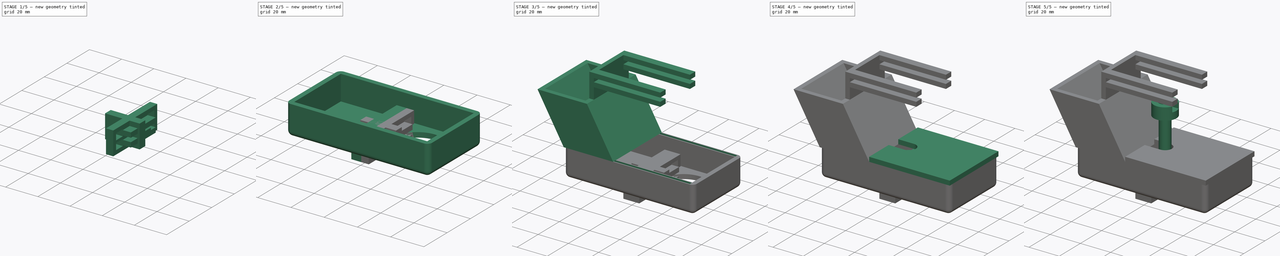
[diagram: build sequence overview — one tinted view per stage of 5, left to right]
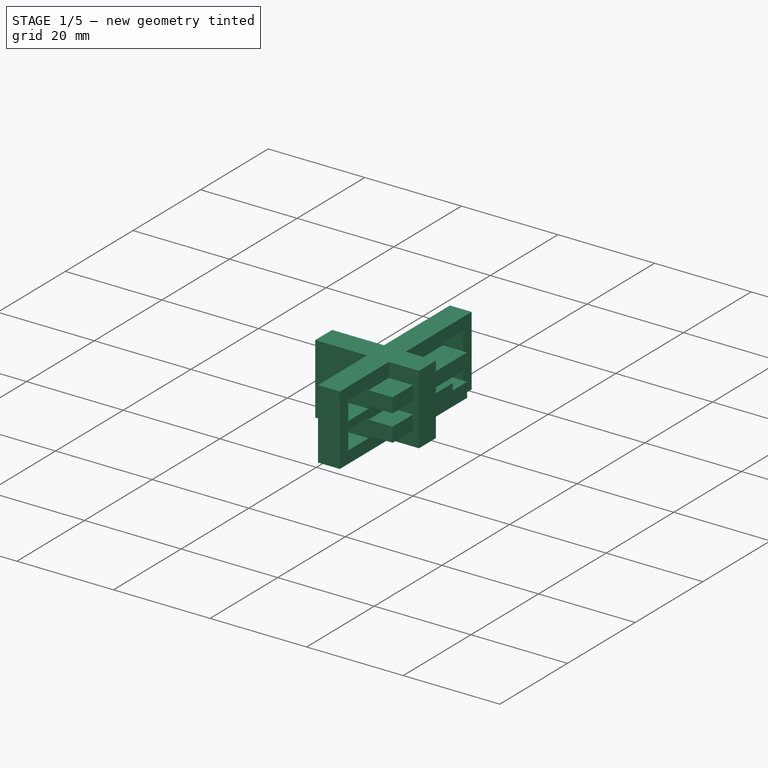
[diagram: stage 1 of 5 — iso view after this stage's code; geometry added in this stage tinted green]
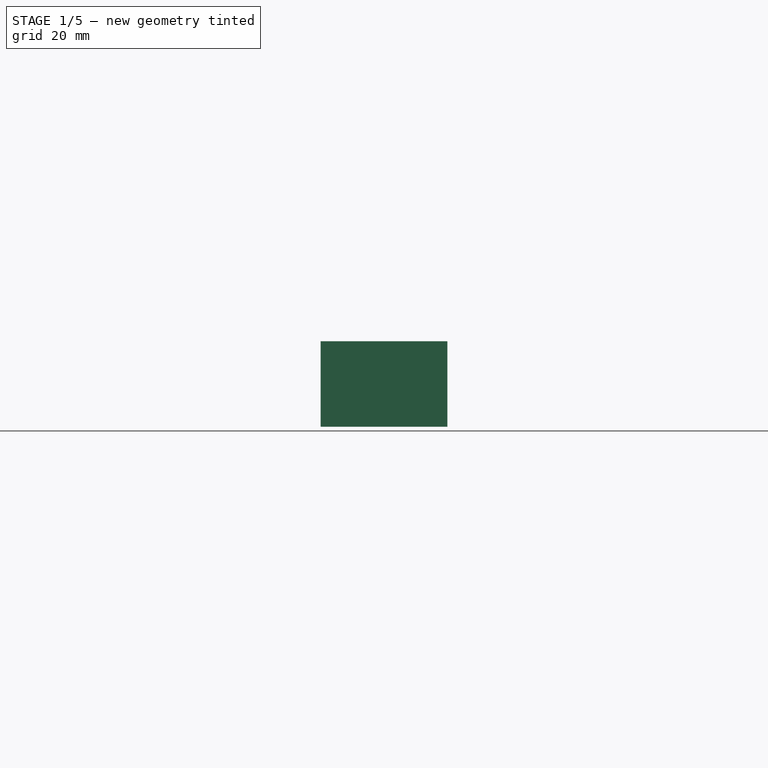
[diagram: stage 1 of 5 — front view after this stage's code; geometry added in this stage tinted green]
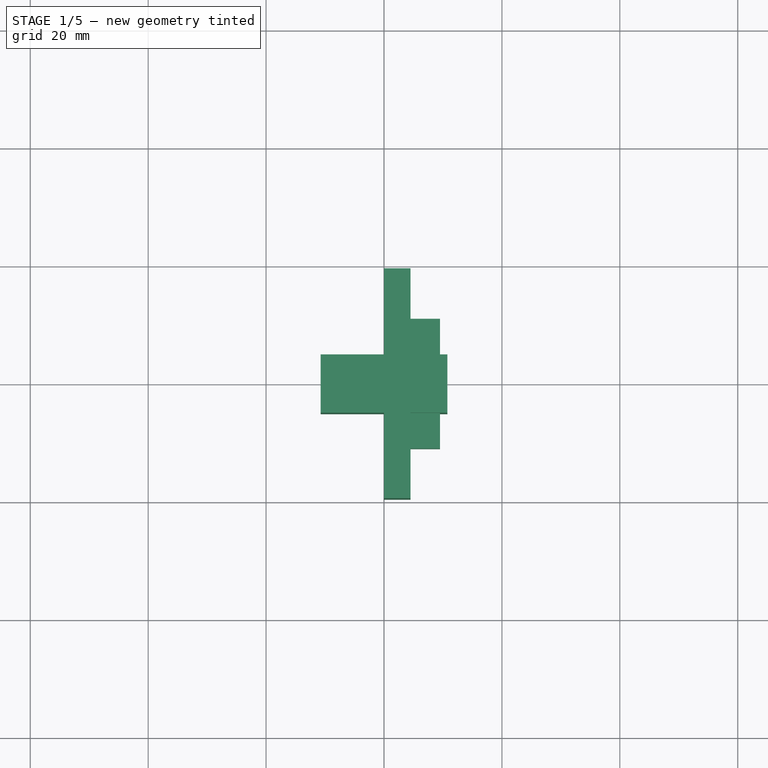
[diagram: stage 1 of 5 — top view after this stage's code; geometry added in this stage tinted green]
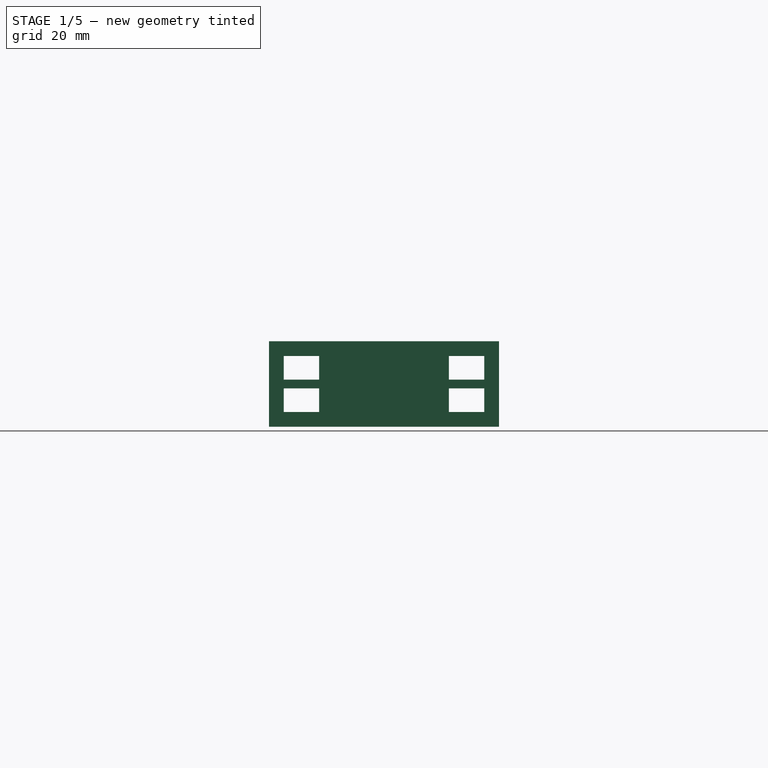
[diagram: stage 1 of 5 — right view after this stage's code; geometry added in this stage tinted green]
FCSTD DOCUMENT  (FreeCAD 1.2R20251230 (Git shallow))
Label: karma_v2
License: All rights reserved
LicenseURL: https://en.wikipedia.org/wiki/All_rights_reserved
objects: Sketcher::SketchObject×19, PartDesign::Pad×16, PartDesign::Body×6, App::Point×6, PartDesign::Pocket×5, PartDesign::MultiTransform×4, PartDesign::Mirrored×3, Part::Part2DObjectPython×2, App::VarSet×1, PartDesign::Thickness×1, PartDesign::PolarPattern×1
note: 128 computed .brp shape members not serialized (recipe doc carries the construction recipe); baked Part::Feature solids carry a one-line shape summary decoded from their .brp

FEATURE [PartDesign::Body] Body  label="pudelko"
  AllowCompound = false
  Group = -> [Sketch,Pad,Thickness,Sketch001,Pocket,Sketch002,Pocket001,Sketch006,Pad004,Sketch007,Pocket002,MultiTransform001,Mirrored,Sketch013,Pad008,Sketch014,Pad009,MultiTransform003,Mirrored002]
  Origin = -> Origin
  Tip = -> MultiTransform003
FEATURE [App::Point] Origin003  label="Origin"
  Role = Origin
FEATURE [App::Point] Origin004  label="Origin"
  Role = Origin
FEATURE [App::Point] Origin005  label="Origin"
  Role = Origin
FEATURE [App::Point] Origin007
  Role = Origin
FEATURE [Sketcher::SketchObject] Sketch015
  ArcFitTolerance = 1e-06
  AttachmentSupport = -> [Origin006]
  ExternalTypes = [0]
  FullyConstrained = true
  MakeInternals = false
  MapMode = 5
  Placement = pos=(0,0,0) rot=(0.57735,0.57735,0.57735;2.0944rad)
  expr: Constraints[41] = 2 * VarSet.WallT + 2.5 mm + 2 * VarSet.WallT
  expr: Constraints[42] = VarSet.WallT - VarSet.JunctionTolerance / 2
  expr: Constraints[43] = VarSet.WallT + VarSet.JunctionTolerance
  expr: Constraints[50] = VarSet.WallT - VarSet.JunctionTolerance / 2
  expr: Constraints[63] = VarSet.EngineW + 2 * VarSet.WallT
  expr: Constraints[64] = 5 mm + VarSet.JunctionTolerance
  sketch-geometry (24):
    g0: LineSegment StartX=-19.5 StartY=7.25 StartZ=0 EndX=-19.5 EndY=-7.25 EndZ=0
    g1: LineSegment StartX=-19.5 StartY=-7.25 StartZ=0 EndX=19.5 EndY=-7.25 EndZ=0
    g2: LineSegment StartX=19.5 StartY=-7.25 StartZ=0 EndX=19.5 EndY=7.25 EndZ=0
    g3: LineSegment StartX=19.5 StartY=7.25 StartZ=0 EndX=-19.5 EndY=7.25 EndZ=0
    g4: LineSegment StartX=-17 StartY=-0.75 StartZ=0 EndX=-17 EndY=-4.75 EndZ=0
    g5: LineSegment StartX=-17 StartY=-4.75 StartZ=0 EndX=-11 EndY=-4.75 EndZ=0
    g6: LineSegment StartX=-11 StartY=-4.75 StartZ=0 EndX=-11 EndY=-0.75 EndZ=0
    g7: LineSegment StartX=-11 StartY=-0.75 StartZ=0 EndX=-17 EndY=-0.75 EndZ=0
    g8: LineSegment StartX=-17 StartY=0.75 StartZ=0 EndX=-11 EndY=0.75 EndZ=0
    g9: LineSegment StartX=-11 StartY=0.75 StartZ=0 EndX=-11 EndY=4.75 EndZ=0
    g10: LineSegment StartX=-11 StartY=4.75 StartZ=0 EndX=-17 EndY=4.75 EndZ=0
    g11: LineSegment StartX=-17 StartY=4.75 StartZ=0 EndX=-17 EndY=0.75 EndZ=0
    g12: LineSegment StartX=11 StartY=4.75 StartZ=0 EndX=11 EndY=0.75 EndZ=0
    g13: LineSegment StartX=11 StartY=0.75 StartZ=0 EndX=17 EndY=0.75 EndZ=0
    g14: LineSegment StartX=17 StartY=0.75 StartZ=0 EndX=17 EndY=4.75 EndZ=0
    g15: LineSegment StartX=17 StartY=4.75 StartZ=0 EndX=11 EndY=4.75 EndZ=0
    g16: LineSegment StartX=11 StartY=-0.75 StartZ=0 EndX=11 EndY=-4.75 EndZ=0
    g17: LineSegment StartX=11 StartY=-4.75 StartZ=0 EndX=17 EndY=-4.75 EndZ=0
    g18: LineSegment StartX=17 StartY=-4.75 StartZ=0 EndX=17 EndY=-0.75 EndZ=0
    g19: LineSegment StartX=17 StartY=-0.75 StartZ=0 EndX=11 EndY=-0.75 EndZ=0
    g20: LineSegment [constr] StartX=-19.5 StartY=0.75 StartZ=0 EndX=-19.5 EndY=-0.75 EndZ=0
    g21: LineSegment [constr] StartX=-19.5 StartY=-0.75 StartZ=0 EndX=17 EndY=-0.75 EndZ=0
    g22: LineSegment [constr] StartX=17 StartY=-0.75 StartZ=0 EndX=17 EndY=0.75 EndZ=0
    g23: LineSegment [constr] StartX=17 StartY=0.75 StartZ=0 EndX=-19.5 EndY=0.75 EndZ=0
  constraints (67):
    c: Coincident(g0,g1)
    c: Coincident(g1,g2)
    c: Coincident(g2,g3)
    c: Coincident(g3,g0)
    c: Vertical(g0)
    c: Vertical(g2)
    c: Horizontal(g1)
    c: Horizontal(g3)
    c: Symmetric(g0,g2,g-1)
    c: Coincident(g4,g5)
    c: Coincident(g5,g6)
    c: Coincident(g6,g7)
    c: Coincident(g7,g4)
    c: Vertical(g4)
    c: Vertical(g6)
    c: Horizontal(g5)
    c: Horizontal(g7)
    c: Coincident(g8,g9)
    c: Coincident(g9,g10)
    c: Coincident(g10,g11)
    c: Coincident(g11,g8)
    c: Horizontal(g8)
    c: Horizontal(g10)
    c: Vertical(g9)
    c: Vertical(g11)
    c: Coincident(g12,g13)
    c: Coincident(g13,g14)
    c: Coincident(g14,g15)
    c: Coincident(g15,g12)
    c: Vertical(g12)
    c: Vertical(g14)
    c: Horizontal(g13)
    c: Horizontal(g15)
    c: Coincident(g16,g17)
    c: Coincident(g17,g18)
    c: Coincident(g18,g19)
    c: Coincident(g19,g16)
    c: Vertical(g16)
    c: Vertical(g18)
    c: Horizontal(g17)
    c: Horizontal(g19)
    c: DistanceY(g0,g0) = 14.5
    c: Distance(g1,g5) = 2.5
    c: DistanceY(g6,g6) = 4
    c: Equal(g5,g17)
    c: Equal(g19,g13)
    c: Equal(g8,g13)
    c: Equal(g9,g6)
    c: Equal(g6,g16)
    c: Equal(g16,g12)
    c: Distance(g0,g4) = 2.5
    c: Coincident(g20,g21)
    c: Coincident(g21,g22)
    c: Coincident(g22,g23)
    c: Coincident(g23,g20)
    c: Vertical(g20)
    c: Vertical(g22)
    c: Horizontal(g21)
    c: Horizontal(g23)
    c: PointOnObject(g20,g0)
    c: PointOnObject(g18,g21)
    c: Symmetric(g6,g8,g-1)
    c: Symmetric(g12,g16,g-1)
    c: DistanceX(g3,g3) = 39
    c: DistanceX(g5,g5) = 6
    c: Symmetric(g12,g8,g-2)
    c: Coincident(g22,g13)
FEATURE [PartDesign::Pad] Pad010
  Direction = (1,0,0)
  Length = 6
  Length2 = 10
  Profile = -> Sketch015
  ReferenceAxis = -> Sketch015 [N_Axis]
  Refine = true
  Reversed = true
  SideType = 0
  Suppressed = false
  Type = 0
  Type2 = 0
FEATURE [PartDesign::Body] Body003  label="EngineLock"
  AllowCompound = true
  Group = -> [Sketch015,Pad010,Sketch016,Pad011]
  Origin = -> Origin006
  Placement = pos=(16.3333,0,56.75) rot=(0,0,1;0rad)
  Tip = -> Pad011
  expr: .Placement.Base.x = 1 / 6 * VarSet.BaseW + VarSet.WallT
  expr: .Placement.Base.z = VarSet.BaseD + VarSet.SupplyH + 13 mm - 2.5 mm / 2
FEATURE [App::Point] Origin009  label="Origin010"
  Role = Origin
FEATURE [Part::Part2DObjectPython] Clone2D  label="Sketch015 (2D)"  # Draft 2D object (typed FeaturePython)
  AttachmentSupport = -> [Origin008]
  ForceCompound = false
  Fuse = false
  MapMode = 5
  Objects = -> [Sketch015]
  Placement = pos=(0,0,0) rot=(0.57735,0.57735,0.57735;2.0944rad)
  Scale = (1,1,1)
FEATURE [PartDesign::Pad] Pad012
  Direction = (1,0,0)
  Length = 4.5
  Length2 = 10
  Profile = -> Clone2D
  ReferenceAxis = -> Clone2D [N_Axis]
  Refine = true
  SideType = 0
  Suppressed = false
  Type = 0
  Type2 = 0
FEATURE [Part::Part2DObjectPython] Clone2D001  label="Sketch016 (2D)"  # Draft 2D object (typed FeaturePython)
  AttachmentSupport = -> [Pad012]
  ForceCompound = false
  Fuse = false
  MapMode = 5
  Objects = -> [Sketch016]
  Placement = pos=(4.5,0,0) rot=(0.57735,0.57735,0.57735;2.0944rad)
  Scale = (1,1,1)
FEATURE [PartDesign::Pad] Pad013
  BaseFeature = -> Pad012
  Direction = (1,0,0)
  Length = 5
  Length2 = 10
  Profile = -> Clone2D001
  ReferenceAxis = -> Clone2D001 [N_Axis]
  Refine = true
  SideType = 0
  Suppressed = false
  Type = 0
  Type2 = 0
FEATURE [PartDesign::Body] Body004  label="EngineLock2"
  AllowCompound = true
  Group = -> [Clone2D,Pad012,Clone2D001,Pad013]
  Origin = -> Origin008
  Placement = pos=(-27.6538,0,56.75) rot=(0,0,1;0rad)
  Tip = -> Pad013
  expr: .Placement.Base.x = -1 / 6 * VarSet.BaseW + VarSet.WallT - VarSet.SupplyH / sqrt(3)
  expr: .Placement.Base.z = VarSet.BaseD + VarSet.SupplyH + 13 mm - 2.5 mm / 2
FEATURE [App::Point] Origin011  label="Origin013"
  Role = Origin
FEATURE [Sketcher::SketchObject] Sketch017
  ArcFitTolerance = 1e-06
  AttachmentSupport = -> [Origin010]
  ExternalTypes = [0]
  FullyConstrained = true
  MakeInternals = false
  MapMode = 5
  Placement = pos=(0,0,0) rot=(1,0,0;1.5708rad)
  expr: Constraints[10] = <<VarSet>>.SupplyH / sqrt(3) + 1 / 3 * <<VarSet>>.BaseW - 4.5 mm - 6 mm - 2 * 5 mm - 2 * VarSet.JunctionTolerance
  expr: Constraints[8] = 2 * VarSet.WallT + 2.5 mm + 2 * VarSet.WallT
  sketch-geometry (4):
    g0: LineSegment StartX=-10.7436 StartY=7.25 StartZ=0 EndX=-10.7436 EndY=-7.25 EndZ=0
    g1: LineSegment StartX=-10.7436 StartY=-7.25 StartZ=0 EndX=10.7436 EndY=-7.25 EndZ=0
    g2: LineSegment StartX=10.7436 StartY=-7.25 StartZ=0 EndX=10.7436 EndY=7.25 EndZ=0
    g3: LineSegment StartX=10.7436 StartY=7.25 StartZ=0 EndX=-10.7436 EndY=7.25 EndZ=0
  constraints (11):
    c: Coincident(g0,g1)
    c: Coincident(g1,g2)
    c: Coincident(g2,g3)
    c: Coincident(g3,g0)
    c: Vertical(g0)
    c: Vertical(g2)
    c: Horizontal(g1)
    c: Horizontal(g3)
    c: DistanceY(g2,g2) = 14.5
    c: Symmetric(g1,g0,g-1)
    c: DistanceX(g3,g3) = 21.4872
FEATURE [PartDesign::Pad] Pad014
  Direction = (0,-1,2e-16)
  Length = 5
  Length2 = 10
  Profile = -> Sketch017
  ReferenceAxis = -> Sketch017 [N_Axis]
  Refine = true
  SideType = 0
  Suppressed = false
  Type = 0
  Type2 = 0
FEATURE [Sketcher::SketchObject] Sketch018
  ArcFitTolerance = 1e-06
  AttachmentSupport = -> [Pad014]
  ExternalGeometry = -> [Pad014]
  ExternalTypes = [0,0]
  FullyConstrained = true
  MakeInternals = false
  MapMode = 5
  Placement = pos=(0,0,0) rot=(0,0.707107,0.707107;3.14159rad)
  sketch-geometry (4):
    g0: LineSegment StartX=-10.7436 StartY=-1.15 StartZ=0 EndX=10.7436 EndY=-1.15 EndZ=0
    g1: LineSegment StartX=10.7436 StartY=-1.15 StartZ=0 EndX=10.7436 EndY=1.15 EndZ=0
    g2: LineSegment StartX=10.7436 StartY=1.15 StartZ=0 EndX=-10.7436 EndY=1.15 EndZ=0
    g3: LineSegment StartX=-10.7436 StartY=1.15 StartZ=0 EndX=-10.7436 EndY=-1.15 EndZ=0
  constraints (11):
    c: Coincident(g0,g1)
    c: Coincident(g1,g2)
    c: Coincident(g2,g3)
    c: Coincident(g3,g0)
    c: Horizontal(g0)
    c: Horizontal(g2)
    c: Vertical(g1)
    c: Vertical(g3)
    c: Symmetric(g0,g1,g-1)
    c: PointOnObject(g0,g-3)
    c: DistanceY(g3,g3) = 2.3
FEATURE [PartDesign::Pad] Pad015
  BaseFeature = -> Pad014
  Direction = (0,1,-2e-16)
  Length = 5
  Length2 = 10
  Profile = -> Sketch018
  ReferenceAxis = -> Sketch018 [N_Axis]
  Refine = true
  SideType = 0
  Suppressed = false
  Type = 0
  Type2 = 0
FEATURE [PartDesign::Body] Body005  label="VLock"
  AllowCompound = true
  Group = -> [Sketch017,Pad014,Sketch018,Pad015]
  Origin = -> Origin010
  Placement = pos=(-6.41025,11.5,56.75) rot=(0,0,1;0rad)
  Tip = -> Pad015
  expr: .Placement.Base.x = (1 / 6 * VarSet.BaseW + VarSet.WallT + -1 / 6 * VarSet.BaseW + VarSet.WallT - VarSet.SupplyH / sqrt(3) - 6 mm + 4.5 mm) / 2
  expr: .Placement.Base.y = <<VarSet>>.EngineW / 2 - 5 mm
  expr: .Placement.Base.z = VarSet.BaseD + VarSet.SupplyH + 13 mm - 2.5 mm / 2
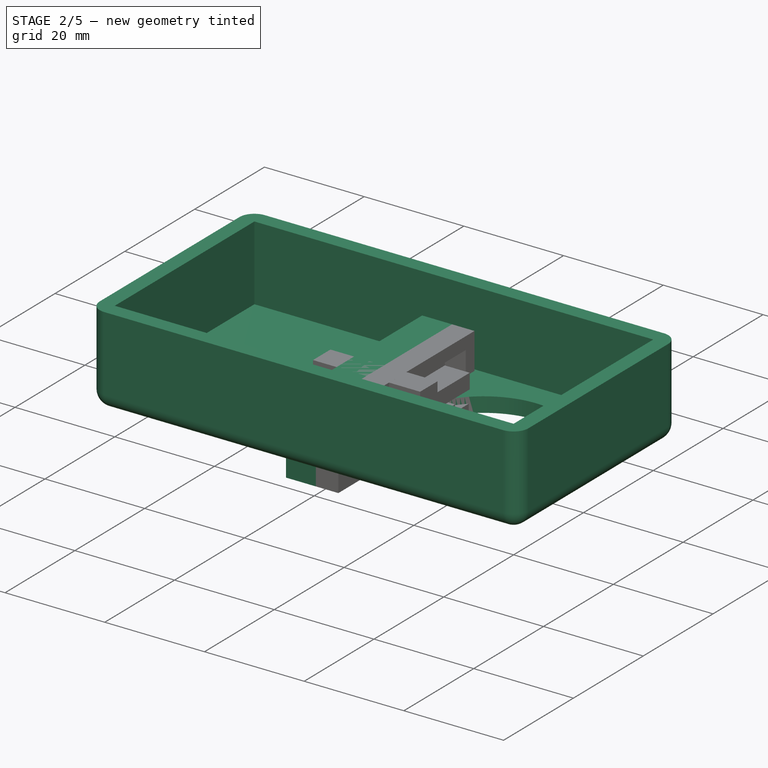
[diagram: stage 2 of 5 — iso view after this stage's code; geometry added in this stage tinted green]
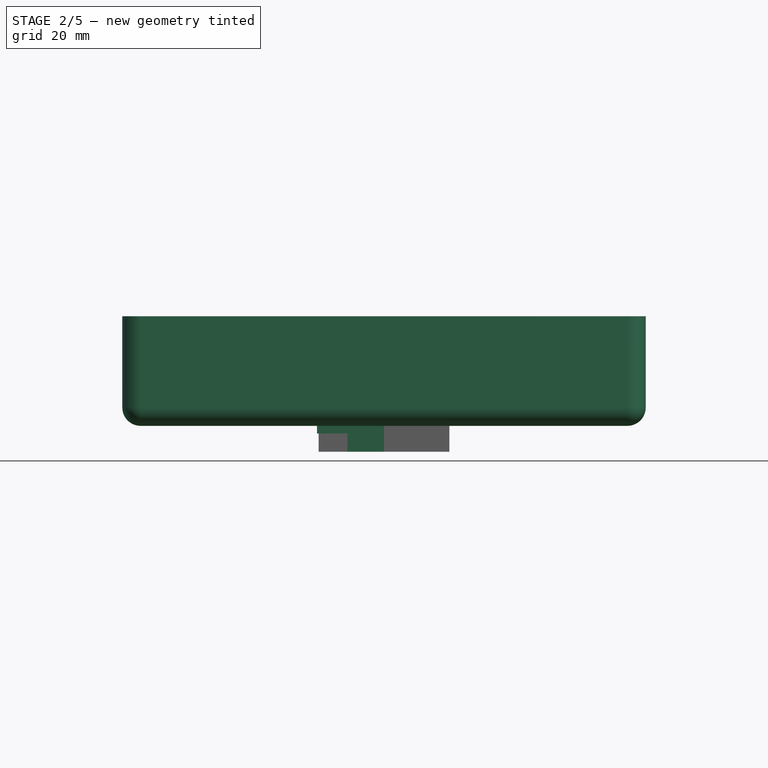
[diagram: stage 2 of 5 — front view after this stage's code; geometry added in this stage tinted green]
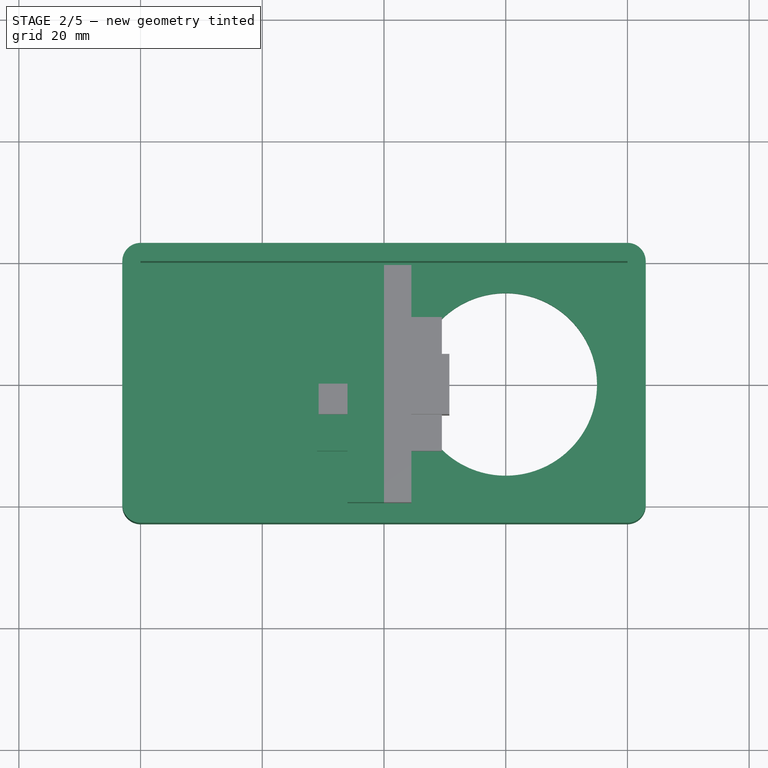
[diagram: stage 2 of 5 — top view after this stage's code; geometry added in this stage tinted green]
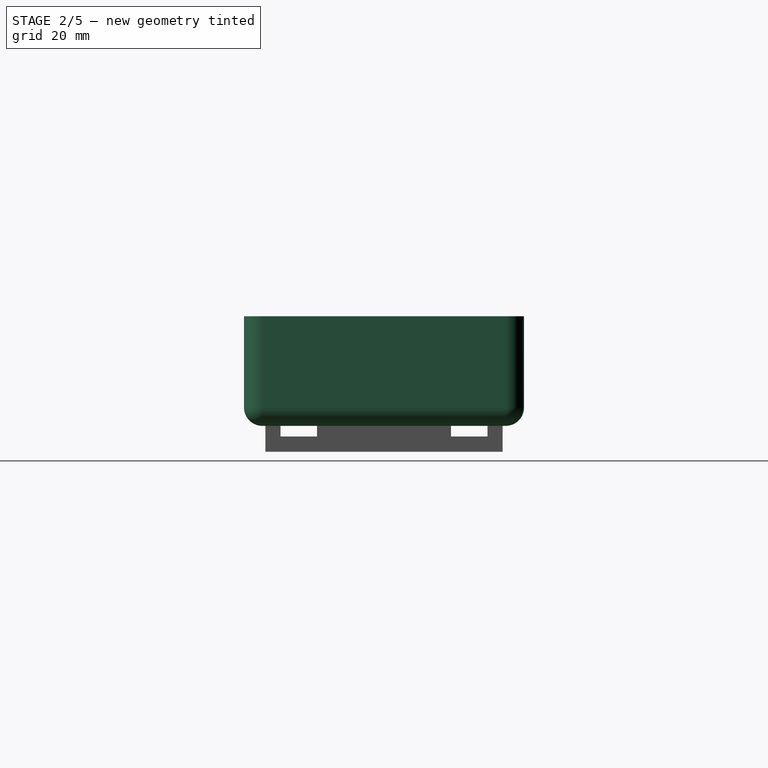
[diagram: stage 2 of 5 — right view after this stage's code; geometry added in this stage tinted green]
FEATURE [Sketcher::SketchObject] Sketch
  ArcFitTolerance = 1e-06
  AttachmentSupport = -> [XY_Plane]
  ExternalTypes = [0]
  FullyConstrained = true
  MakeInternals = false
  MapMode = 5
  expr: Constraints[10] = <<VarSet>>.BaseW
  expr: Constraints[11] = <<VarSet>>.BaseH
  sketch-geometry (5):
    g0: LineSegment StartX=-40 StartY=-20 StartZ=0 EndX=40 EndY=-20 EndZ=0
    g1: LineSegment StartX=40 StartY=-20 StartZ=0 EndX=40 EndY=20 EndZ=0
    g2: LineSegment StartX=40 StartY=20 StartZ=0 EndX=-40 EndY=20 EndZ=0
    g3: LineSegment StartX=-40 StartY=20 StartZ=0 EndX=-40 EndY=-20 EndZ=0
    g4: GeomPoint [constr] X=0 Y=0 Z=0
  constraints (12):
    c: Coincident(g0,g1)
    c: Coincident(g1,g2)
    c: Coincident(g2,g3)
    c: Coincident(g3,g0)
    c: Horizontal(g0)
    c: Horizontal(g2)
    c: Vertical(g1)
    c: Vertical(g3)
    c: Symmetric(g2,g0,g4)
    c: Coincident(g4,g-1)
    c: DistanceX(g2,g2) = 80
    c: DistanceY(g3,g3) = 40
FEATURE [App::VarSet] VarSet
  BaseD = 15
  BaseH = 40
  BaseW = 80
  EngineJnuctionEngr = 3.5
  EngineJunctionBaseD = 15
  EngineJunctionBaseH = 8
  EngineJunctionWingD = 6
  EngineMountCircD = 8
  EngineW = 33
  JunctionD = 0.7
  JunctionH = 2
  JunctionTolerance = 1
  OutputHoleD = 30
  RotorH = 22
  RotorMountD = 8
  RotorWingD = 3
  SupplyH = 30
  Tolerance = 1
  WallT = 3
  expr: RotorH = SupplyH - EngineJunctionBaseH
FEATURE [PartDesign::Pad] Pad
  Direction = (0,0,1)
  Length = 15
  Length2 = 10
  Profile = -> Sketch
  ReferenceAxis = -> Sketch [N_Axis]
  Refine = true
  SideType = 0
  Suppressed = false
  Type = 0
  Type2 = 0
  expr: Length = <<VarSet>>.BaseD
FEATURE [PartDesign::Thickness] Thickness
  Base = -> Pad [Face6]
  BaseFeature = -> Pad
  Intersection = false
  Join = 0
  Mode = 0
  Refine = true
  SupportTransform = false
  Suppressed = false
  Value = 3
  expr: Value = <<VarSet>>.WallT
FEATURE [Sketcher::SketchObject] Sketch001
  ArcFitTolerance = 1e-06
  AttachmentSupport = -> [Thickness]
  ExternalGeometry = -> [Thickness]
  ExternalTypes = [0]
  FullyConstrained = true
  MakeInternals = false
  MapMode = 5
  expr: Constraints[0] = VarSet.OutputHoleD
  sketch-geometry (2):
    g0: Circle CenterX=20 CenterY=-1e-16 CenterZ=0 NormalX=0 NormalY=0 NormalZ=1 AngleXU=0 Radius=15
    g1: GeomPoint X=40 Y=-2e-16 Z=0
  constraints (3):
    c: Diameter(g0) = 30
    c: Symmetric(g-3,g-3,g1)
    c: Symmetric(g1,g-1,g0)
FEATURE [PartDesign::Pocket] Pocket
  BaseFeature = -> Thickness
  Direction = (0,0,-1)
  Length = 3
  Length2 = 5
  Profile = -> Sketch001
  ReferenceAxis = -> Sketch001 [N_Axis]
  Refine = true
  SideType = 0
  Suppressed = false
  Type = 0
  Type2 = 0
  expr: Length = <<VarSet>>.WallT
FEATURE [Sketcher::SketchObject] Sketch002
  ArcFitTolerance = 1e-06
  AttachmentSupport = -> [Pocket]
  ExternalTypes = [0]
  FullyConstrained = true
  MakeInternals = false
  MapMode = 5
  expr: Constraints[1] = VarSet.RotorMountD
  sketch-geometry (1):
    g0: Circle CenterX=0 CenterY=0 CenterZ=0 NormalX=0 NormalY=0 NormalZ=1 AngleXU=0 Radius=4
  constraints (2):
    c: Coincident(g0,g-1)
    c: Diameter(g0) = 8
FEATURE [PartDesign::Pocket] Pocket001
  BaseFeature = -> Pocket
  Direction = (0,0,-1)
  Length = 1.5
  Length2 = 5
  Profile = -> Sketch002
  ReferenceAxis = -> Sketch002 [N_Axis]
  Refine = true
  SideType = 0
  Suppressed = false
  Type = 0
  Type2 = 0
  expr: Length = <<VarSet>>.WallT / 2
FEATURE [Sketcher::SketchObject] Sketch016
  ArcFitTolerance = 1e-06
  AttachmentSupport = -> [Pad010]
  ExternalGeometry = -> [Pad010]
  ExternalTypes = [0,0,0,0,0]
  FullyConstrained = true
  MakeInternals = false
  MapMode = 5
  Placement = pos=(-6,0,0) rot=(0.57735,-0.57735,-0.57735;2.0944rad)
  expr: Constraints[19] = VarSet.JunctionTolerance / 2
  sketch-geometry (14):
    g0: LineSegment [constr] StartX=-11 StartY=-0.75 StartZ=0 EndX=-11 EndY=-4.75 EndZ=0
    g1: LineSegment [constr] StartX=-11 StartY=-4.75 StartZ=0 EndX=11 EndY=-4.75 EndZ=0
    g2: LineSegment [constr] StartX=11 StartY=-4.75 StartZ=0 EndX=11 EndY=-0.75 EndZ=0
    g3: LineSegment [constr] StartX=11 StartY=-0.75 StartZ=0 EndX=-11 EndY=-0.75 EndZ=0
    g4: LineSegment StartX=-11 StartY=-1.25 StartZ=0 EndX=-11 EndY=-4.25 EndZ=0
    g5: LineSegment StartX=-11 StartY=-4.25 StartZ=0 EndX=11 EndY=-4.25 EndZ=0
    g6: LineSegment StartX=11 StartY=-4.25 StartZ=0 EndX=11 EndY=-1.25 EndZ=0
    g7: LineSegment StartX=11 StartY=-1.25 StartZ=0 EndX=-11 EndY=-1.25 EndZ=0
    g8: GeomPoint [constr] X=2e-16 Y=2.75 Z=0
    g9: GeomPoint [constr] X=2e-16 Y=-2.75 Z=0
    g10: LineSegment StartX=-11 StartY=4.25 StartZ=0 EndX=-11 EndY=1.25 EndZ=0
    g11: LineSegment StartX=-11 StartY=1.25 StartZ=0 EndX=11 EndY=1.25 EndZ=0
    g12: LineSegment StartX=11 StartY=1.25 StartZ=0 EndX=11 EndY=4.25 EndZ=0
    g13: LineSegment StartX=11 StartY=4.25 StartZ=0 EndX=-11 EndY=4.25 EndZ=0
  constraints (34):
    c: Coincident(g0,g1)
    c: Coincident(g1,g2)
    c: Coincident(g2,g3)
    c: Coincident(g3,g0)
    c: Vertical(g0)
    c: Vertical(g2)
    c: Horizontal(g1)
    c: Horizontal(g3)
    c: Coincident(g0,g-26)
    c: Coincident(g1,g-13)
    c: Coincident(g4,g5)
    c: Coincident(g5,g6)
    c: Coincident(g6,g7)
    c: Coincident(g7,g4)
    c: Vertical(g4)
    c: Vertical(g6)
    c: Horizontal(g5)
    c: Horizontal(g7)
    c: PointOnObject(g4,g0)
    c: Distance(g1,g5) = 0.5
    c: Coincident(g10,g11)
    c: Coincident(g11,g12)
    c: Coincident(g12,g13)
    c: Coincident(g13,g10)
    c: Vertical(g10)
    c: Vertical(g12)
    c: Horizontal(g11)
    c: Horizontal(g13)
    c: Symmetric(g12,g10,g8)
    c: Symmetric(g9,g8,g-1)
    c: Symmetric(g4,g6,g9)
    c: Symmetric(g0,g2,g9)
    c: Equal(g11,g7)
    c: Equal(g10,g4)
FEATURE [PartDesign::Pad] Pad011
  BaseFeature = -> Pad010
  Direction = (-1,0,0)
  Length = 5
  Length2 = 10
  Profile = -> Sketch016
  ReferenceAxis = -> Sketch016 [N_Axis]
  Refine = true
  SideType = 0
  Suppressed = false
  Type = 0
  Type2 = 0
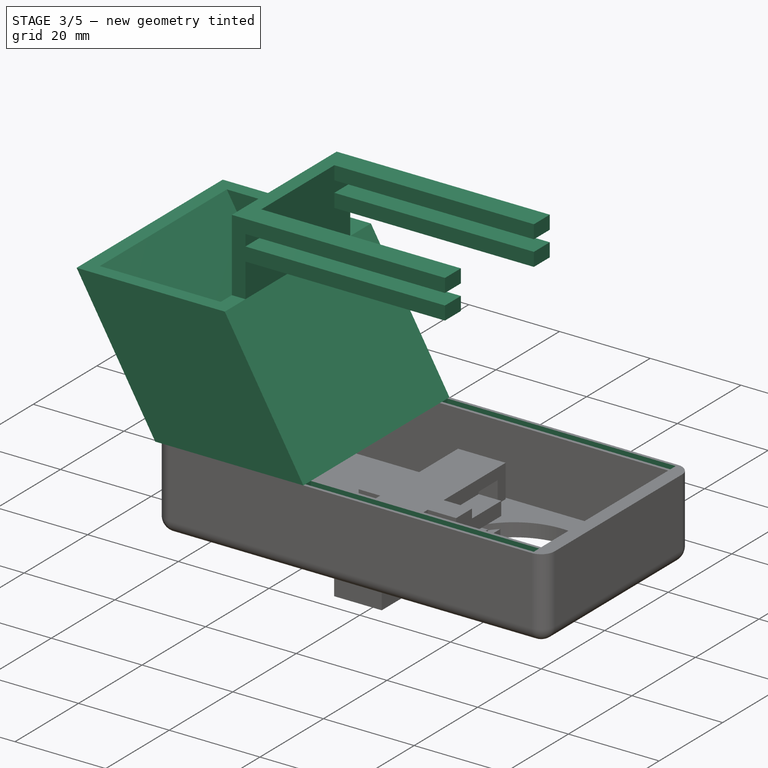
[diagram: stage 3 of 5 — iso view after this stage's code; geometry added in this stage tinted green]
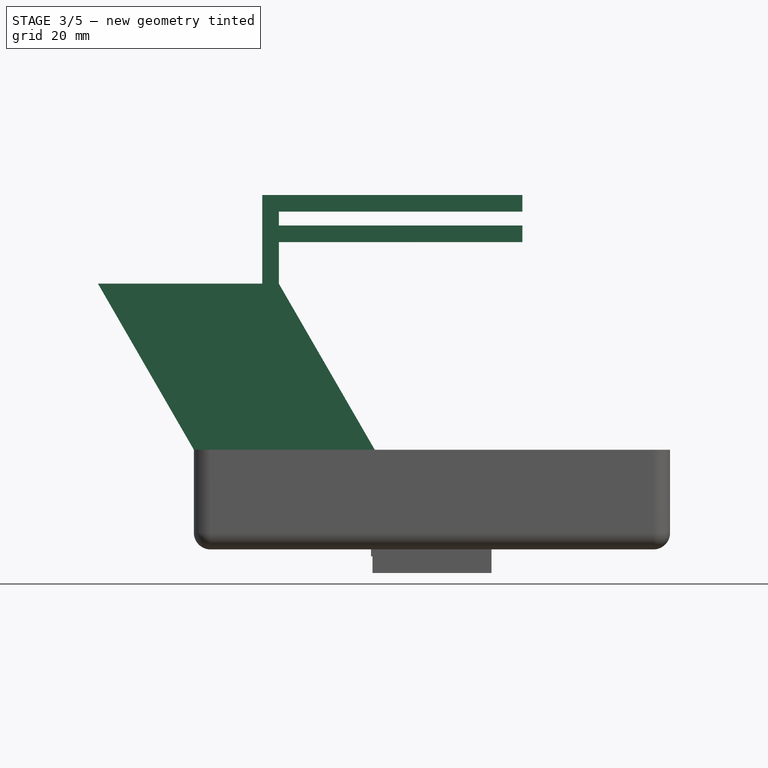
[diagram: stage 3 of 5 — front view after this stage's code; geometry added in this stage tinted green]
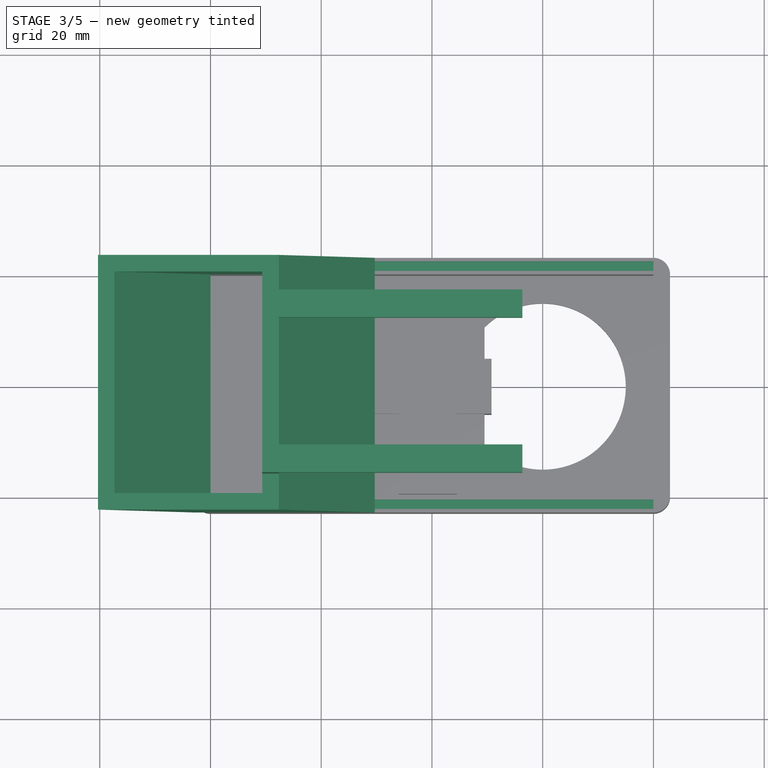
[diagram: stage 3 of 5 — top view after this stage's code; geometry added in this stage tinted green]
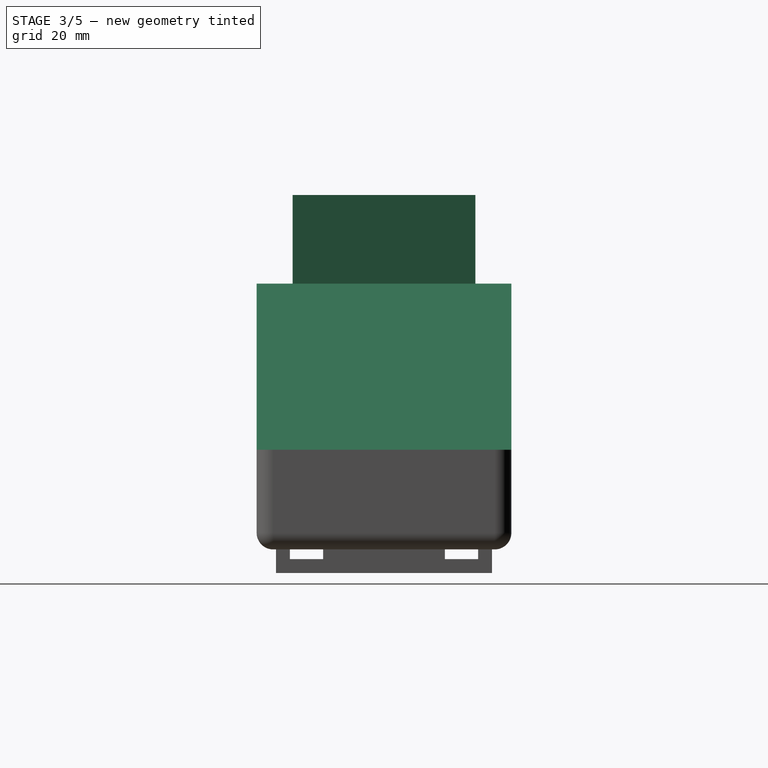
[diagram: stage 3 of 5 — right view after this stage's code; geometry added in this stage tinted green]
FEATURE [Sketcher::SketchObject] Sketch006
  ArcFitTolerance = 1e-06
  AttachmentSupport = -> [Pocket001]
  ExternalGeometry = -> [Pocket001]
  ExternalTypes = [0]
  FullyConstrained = true
  MakeInternals = false
  MapMode = 5
  Placement = pos=(0,0,15) rot=(0,0,1;0rad)
  expr: Constraints[10] = <<VarSet>>.BaseW / 3
  expr: Constraints[22] = <<VarSet>>.WallT
  sketch-geometry (8):
    g0: LineSegment StartX=-40 StartY=20 StartZ=0 EndX=-40 EndY=-20 EndZ=0
    g1: LineSegment StartX=-40 StartY=-20 StartZ=0 EndX=-13.3333 EndY=-20 EndZ=0
    g2: LineSegment StartX=-13.3333 StartY=-20 StartZ=0 EndX=-13.3333 EndY=20 EndZ=0
    g3: LineSegment StartX=-13.3333 StartY=20 StartZ=0 EndX=-40 EndY=20 EndZ=0
    g4: LineSegment StartX=-43 StartY=23 StartZ=0 EndX=-43 EndY=-23 EndZ=0
    g5: LineSegment StartX=-43 StartY=-23 StartZ=0 EndX=-10.3333 EndY=-23 EndZ=0
    g6: LineSegment StartX=-10.3333 StartY=-23 StartZ=0 EndX=-10.3333 EndY=23 EndZ=0
    g7: LineSegment StartX=-10.3333 StartY=23 StartZ=0 EndX=-43 EndY=23 EndZ=0
  constraints (23):
    c: Coincident(g0,g1)
    c: Coincident(g1,g2)
    c: Coincident(g2,g3)
    c: Coincident(g3,g0)
    c: Vertical(g0)
    c: Vertical(g2)
    c: Horizontal(g1)
    c: Horizontal(g3)
    c: Coincident(g0,g-3)
    c: PointOnObject(g1,g-4)
    c: DistanceX(g3,g3) = 26.6667
    c: Coincident(g4,g5)
    c: Coincident(g5,g6)
    c: Coincident(g6,g7)
    c: Coincident(g7,g4)
    c: Vertical(g4)
    c: Vertical(g6)
    c: Horizontal(g5)
    c: Horizontal(g7)
    c: PointOnObject(g4,g-6)
    c: PointOnObject(g4,g-5)
    c: PointOnObject(g5,g-7)
    c: Distance(g2,g6) = 3
FEATURE [PartDesign::Pad] Pad004
  BaseFeature = -> Pocket001
  Direction = (-1,0,1.73205)
  Length = 30
  Length2 = 10
  Profile = -> Sketch006
  ReferenceAxis = -> Sketch006 [N_Axis]
  Refine = true
  SideType = 0
  Suppressed = false
  Type = 0
  Type2 = 0
  UseCustomVector = true
  expr: .Direction.x = -1
  expr: .Direction.z = sqrt(3)
  expr: Length = <<VarSet>>.SupplyH
FEATURE [Sketcher::SketchObject] Sketch007
  ArcFitTolerance = 1e-06
  AttachmentSupport = -> [Pad004]
  ExternalGeometry = -> [Pad004]
  ExternalTypes = [0]
  FullyConstrained = true
  MakeInternals = false
  MapMode = 5
  Placement = pos=(0,0,15) rot=(0,0,1;0rad)
  expr: Constraints[9] = <<VarSet>>.JunctionD + <<VarSet>>.JunctionTolerance
  sketch-geometry (5):
    g0: LineSegment StartX=-10.3333 StartY=-20.65 StartZ=0 EndX=-10.3333 EndY=-22.35 EndZ=0
    g1: LineSegment StartX=-10.3333 StartY=-22.35 StartZ=0 EndX=40 EndY=-22.35 EndZ=0
    g2: LineSegment StartX=40 StartY=-22.35 StartZ=0 EndX=40 EndY=-20.65 EndZ=0
    g3: LineSegment StartX=40 StartY=-20.65 StartZ=0 EndX=-10.3333 EndY=-20.65 EndZ=0
    g4: GeomPoint X=-10.3333 Y=-21.5 Z=0
  constraints (12):
    c: Coincident(g0,g1)
    c: Coincident(g1,g2)
    c: Coincident(g2,g3)
    c: Coincident(g3,g0)
    c: Vertical(g0)
    c: Vertical(g2)
    c: Horizontal(g1)
    c: Horizontal(g3)
    c: PointOnObject(g2,g-3)
    c: DistanceY(g0,g0) = 1.7
    c: Symmetric(g0,g0,g4)
    c: Symmetric(g-4,g-4,g4)
FEATURE [PartDesign::Pocket] Pocket002
  BaseFeature = -> Pad004
  Direction = (0,0,-1)
  Length = 2
  Length2 = 5
  Profile = -> Sketch007
  ReferenceAxis = -> Sketch007 [N_Axis]
  Refine = true
  SideType = 0
  Suppressed = false
  Type = 0
  Type2 = 0
  expr: Length = VarSet.JunctionH
FEATURE [PartDesign::Mirrored] Mirrored
  MirrorPlane = -> XZ_Plane
  Refine = true
  Suppressed = false
  TransformMode = 0
FEATURE [PartDesign::MultiTransform] MultiTransform001
  BaseFeature = -> Pocket002
  Originals = -> [Pocket002]
  Refine = true
  Suppressed = false
  TransformMode = 0
  Transformations = -> [Mirrored]
FEATURE [PartDesign::Body] Body002  label="Klapa"
  AllowCompound = false
  Group = -> [Sketch008,Pad005,Sketch009,Sketch010,Pad006,MultiTransform002,Mirrored001,Pocket005]
  Origin = -> Origin002
  Tip = -> Pocket005
FEATURE [Sketcher::SketchObject] Sketch013
  ArcFitTolerance = 1e-06
  AttachmentSupport = -> [MultiTransform001]
  ExternalGeometry = -> [MultiTransform001]
  ExternalTypes = [0]
  FullyConstrained = true
  MakeInternals = false
  MapMode = 5
  Placement = pos=(0,0,45) rot=(0,0,1;0rad)
  expr: Constraints[8] = <<VarSet>>.EngineW
  sketch-geometry (4):
    g0: LineSegment StartX=-30.6538 StartY=16.5 StartZ=0 EndX=-30.6538 EndY=-16.5 EndZ=0
    g1: LineSegment StartX=-30.6538 StartY=-16.5 StartZ=0 EndX=-27.6538 EndY=-16.5 EndZ=0
    g2: LineSegment StartX=-27.6538 StartY=-16.5 StartZ=0 EndX=-27.6538 EndY=16.5 EndZ=0
    g3: LineSegment StartX=-27.6538 StartY=16.5 StartZ=0 EndX=-30.6538 EndY=16.5 EndZ=0
  constraints (11):
    c: Coincident(g0,g1)
    c: Coincident(g1,g2)
    c: Coincident(g2,g3)
    c: Coincident(g3,g0)
    c: Vertical(g2)
    c: Horizontal(g1)
    c: Horizontal(g3)
    c: Symmetric(g0,g0,g-1)
    c: DistanceY(g2,g2) = 33
    c: PointOnObject(g-3,g0)
    c: PointOnObject(g-4,g2)
FEATURE [PartDesign::Pad] Pad008
  BaseFeature = -> MultiTransform001
  Direction = (0,0,1)
  Length = 16
  Length2 = 10
  Profile = -> Sketch013
  ReferenceAxis = -> Sketch013 [N_Axis]
  Refine = true
  SideType = 0
  Suppressed = false
  Type = 0
  Type2 = 0
  expr: Length = 13 mm + <<VarSet>>.WallT
FEATURE [Sketcher::SketchObject] Sketch014
  ArcFitTolerance = 1e-06
  AttachmentSupport = -> [Pad008]
  ExternalGeometry = -> [Pad008]
  ExternalTypes = [0]
  FullyConstrained = true
  MakeInternals = false
  MapMode = 5
  Placement = pos=(-27.6538,0,0) rot=(0.57735,0.57735,0.57735;2.0944rad)
  expr: Constraints[9] = <<VarSet>>.WallT
  sketch-geometry (8):
    g0: LineSegment StartX=-16.5 StartY=61 StartZ=0 EndX=-16.5 EndY=58 EndZ=0
    g1: LineSegment StartX=-16.5 StartY=58 StartZ=0 EndX=-11.5 EndY=58 EndZ=0
    g2: LineSegment StartX=-11.5 StartY=58 StartZ=0 EndX=-11.5 EndY=61 EndZ=0
    g3: LineSegment StartX=-11.5 StartY=61 StartZ=0 EndX=-16.5 EndY=61 EndZ=0
    g4: LineSegment StartX=-11.5 StartY=55.5 StartZ=0 EndX=-16.5 EndY=55.5 EndZ=0
    g5: LineSegment StartX=-16.5 StartY=55.5 StartZ=0 EndX=-16.5 EndY=52.5 EndZ=0
    g6: LineSegment StartX=-16.5 StartY=52.5 StartZ=0 EndX=-11.5 EndY=52.5 EndZ=0
    g7: LineSegment StartX=-11.5 StartY=52.5 StartZ=0 EndX=-11.5 EndY=55.5 EndZ=0
  constraints (23):
    c: Coincident(g0,g1)
    c: Coincident(g1,g2)
    c: Coincident(g2,g3)
    c: Coincident(g3,g0)
    c: Vertical(g0)
    c: Vertical(g2)
    c: Horizontal(g1)
    c: Horizontal(g3)
    c: Coincident(g0,g-3)
    c: DistanceY(g0,g0) = 3
    c: DistanceX(g3,g3) = 5
    c: Coincident(g4,g5)
    c: Coincident(g5,g6)
    c: Coincident(g6,g7)
    c: Coincident(g7,g4)
    c: Horizontal(g4)
    c: Horizontal(g6)
    c: Vertical(g5)
    c: Vertical(g7)
    c: Equal(g4,g1)
    c: Equal(g7,g2)
    c: Distance(g1,g4) = 2.5
    c: PointOnObject(g5,g-4)
FEATURE [PartDesign::Pad] Pad009
  BaseFeature = -> Pad008
  Direction = (1,0,0)
  Length = 43.9872
  Length2 = 10
  Profile = -> Sketch014
  ReferenceAxis = -> Sketch014 [N_Axis]
  Refine = true
  SideType = 0
  Suppressed = false
  Type = 0
  Type2 = 0
  expr: Length = <<VarSet>>.SupplyH / sqrt(3) + 1 / 3 * <<VarSet>>.BaseW
FEATURE [PartDesign::Mirrored] Mirrored002
  MirrorPlane = -> XZ_Plane
  Refine = true
  Suppressed = false
  TransformMode = 0
FEATURE [PartDesign::MultiTransform] MultiTransform003
  BaseFeature = -> Pad009
  Originals = -> [Pad009]
  Refine = true
  Suppressed = false
  TransformMode = 0
  Transformations = -> [Mirrored002]
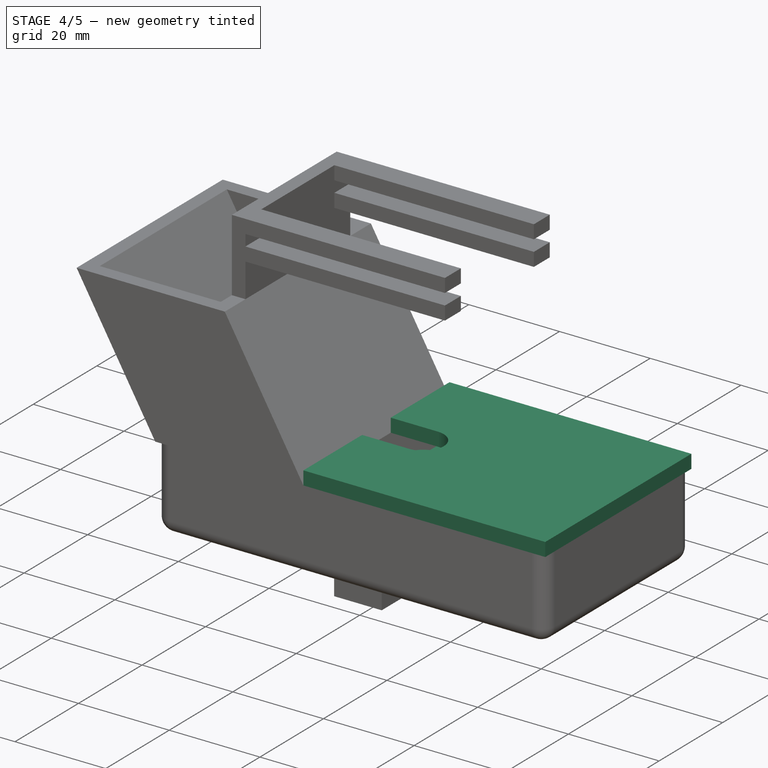
[diagram: stage 4 of 5 — iso view after this stage's code; geometry added in this stage tinted green]
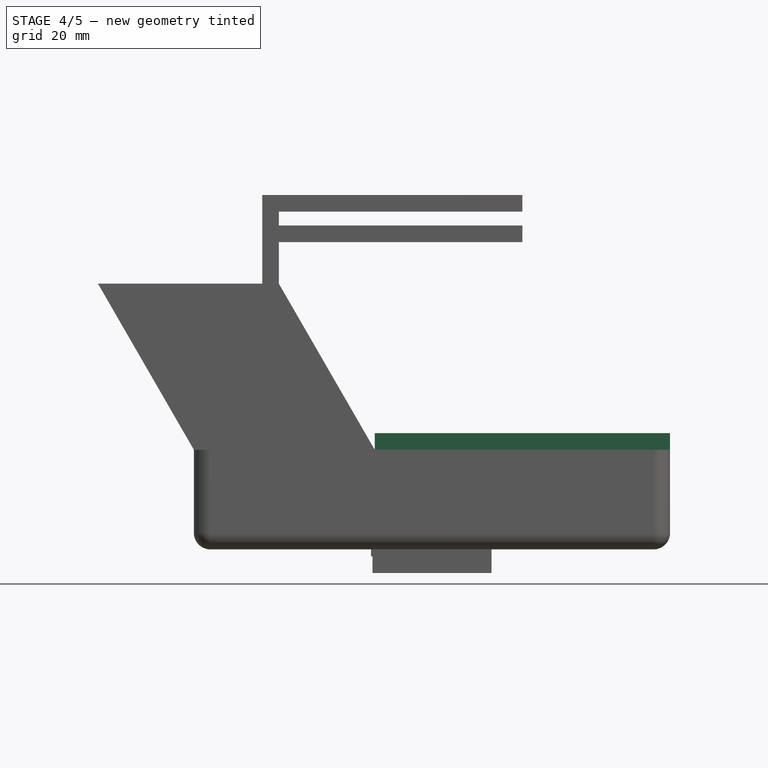
[diagram: stage 4 of 5 — front view after this stage's code; geometry added in this stage tinted green]
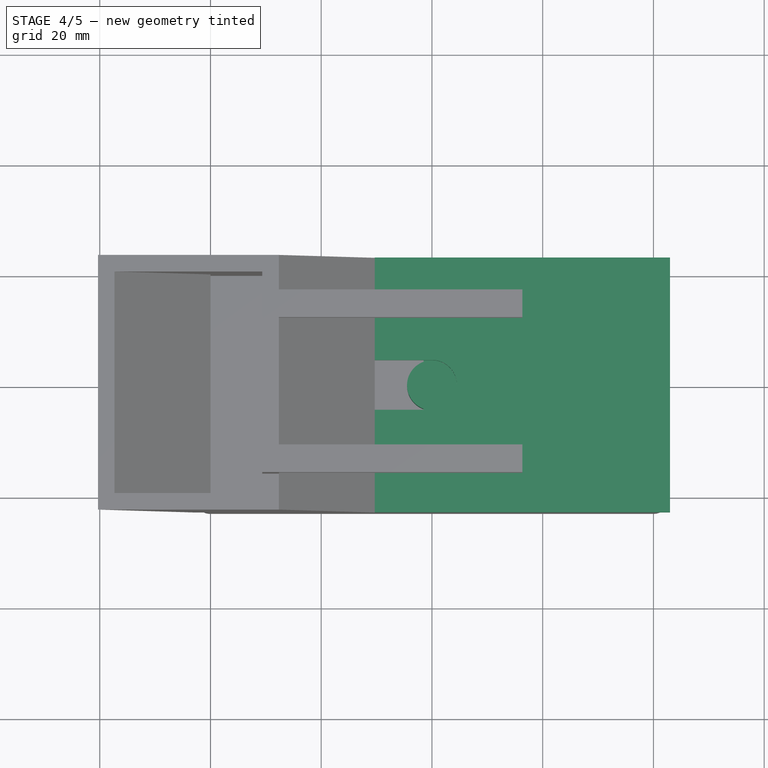
[diagram: stage 4 of 5 — top view after this stage's code; geometry added in this stage tinted green]
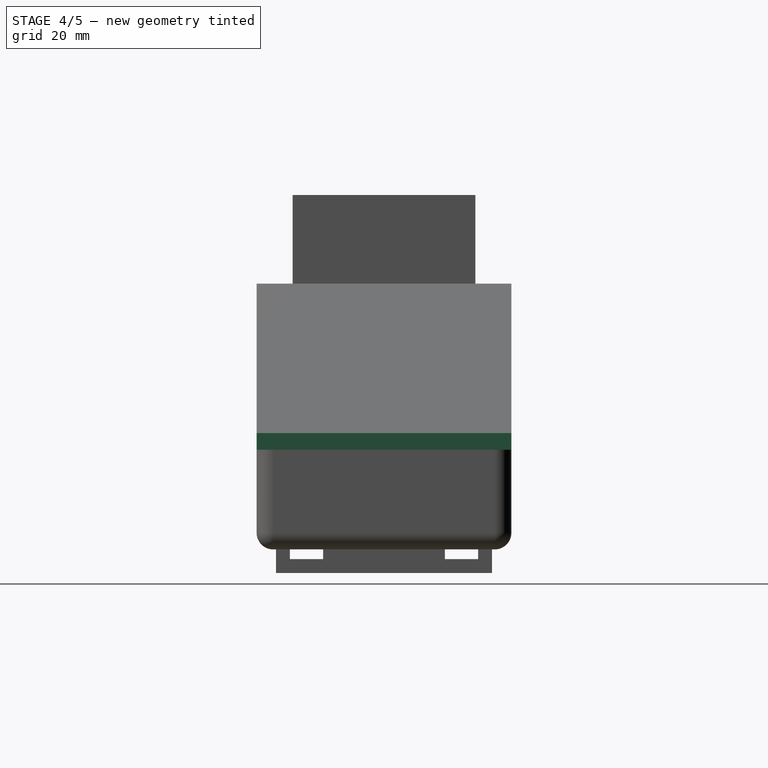
[diagram: stage 4 of 5 — right view after this stage's code; geometry added in this stage tinted green]
FEATURE [Sketcher::SketchObject] Sketch003
  ArcFitTolerance = 1e-06
  AttachmentSupport = -> [XY_Plane001]
  ExternalTypes = [0]
  FullyConstrained = true
  MakeInternals = false
  MapMode = 5
  expr: Constraints[12] = <<VarSet>>.BaseH - 2 * <<VarSet>>.Tolerance - <<VarSet>>.RotorWingD
  expr: Constraints[13] = VarSet.RotorWingD
  expr: Constraints[1] = <<VarSet>>.RotorMountD + <<VarSet>>.Tolerance
  sketch-geometry (8):
    g0: Circle CenterX=0 CenterY=0 CenterZ=0 NormalX=0 NormalY=0 NormalZ=1 AngleXU=0 Radius=4.5
    g1: LineSegment StartX=-1.5 StartY=17.5 StartZ=0 EndX=-1.5 EndY=-17.5 EndZ=0
    g2: LineSegment [constr] StartX=-1.5 StartY=-17.5 StartZ=0 EndX=1.5 EndY=-17.5 EndZ=0
    g3: LineSegment StartX=1.5 StartY=-17.5 StartZ=0 EndX=1.5 EndY=17.5 EndZ=0
    g4: LineSegment [constr] StartX=1.5 StartY=17.5 StartZ=0 EndX=-1.5 EndY=17.5 EndZ=0
    g5: GeomPoint [constr] X=0 Y=0 Z=0
    g6: ArcOfCircle CenterX=0 CenterY=17.5 CenterZ=0 NormalX=0 NormalY=0 NormalZ=1 AngleXU=0 Radius=1.5 StartAngle=1.2e-15 EndAngle=3.14159
    g7: ArcOfCircle CenterX=0 CenterY=-17.5 CenterZ=0 NormalX=0 NormalY=0 NormalZ=1 AngleXU=0 Radius=1.5 StartAngle=3.14159 EndAngle=6.28319
  constraints (20):
    c: Coincident(g0,g-1)
    c: Diameter(g0) = 9
    c: Coincident(g1,g2)
    c: Coincident(g2,g3)
    c: Coincident(g3,g4)
    c: Coincident(g4,g1)
    c: Vertical(g1)
    c: Vertical(g3)
    c: Horizontal(g2)
    c: Horizontal(g4)
    c: Symmetric(g3,g1,g5)
    c: Coincident(g5,g0)
    c: DistanceY(g1,g1) = 35
    c: DistanceX(g4,g4) = 3
    c: Symmetric(g4,g4,g6)
    c: Coincident(g6,g1)
    c: PointOnObject(g6,g4)
    c: PointOnObject(g7,g2)
    c: Coincident(g7,g2)
    c: Coincident(g7,g1)
FEATURE [PartDesign::Pad] Pad001
  Direction = (0,0,1)
  Length = 14
  Length2 = 10
  Profile = -> Sketch003
  ReferenceAxis = -> Sketch003 [N_Axis]
  Refine = true
  SideType = 0
  Suppressed = false
  Type = 0
  Type2 = 0
  expr: Length = VarSet.BaseD - <<VarSet>>.Tolerance
FEATURE [Sketcher::SketchObject] Sketch008
  ArcFitTolerance = 1e-06
  AttachmentOffset = pos=(0,0,15) rot=(0,0,1;0rad)
  AttachmentSupport = -> [XY_Plane002]
  ExternalTypes = [0]
  FullyConstrained = true
  MakeInternals = false
  MapMode = 5
  Placement = pos=(0,0,15) rot=(0,0,1;0rad)
  expr: .AttachmentOffset.Base.z = VarSet.BaseD
  expr: Constraints[10] = <<VarSet>>.BaseW / 2 + VarSet.WallT
  expr: Constraints[7] = VarSet.BaseH + 2 * <<VarSet>>.WallT
  expr: Constraints[8] = <<VarSet>>.BaseW * 2 / 3
  sketch-geometry (4):
    g0: LineSegment StartX=-10.3333 StartY=23 StartZ=0 EndX=-10.3333 EndY=-23 EndZ=0
    g1: LineSegment StartX=-10.3333 StartY=-23 StartZ=0 EndX=43 EndY=-23 EndZ=0
    g2: LineSegment StartX=43 StartY=-23 StartZ=0 EndX=43 EndY=23 EndZ=0
    g3: LineSegment StartX=43 StartY=23 StartZ=0 EndX=-10.3333 EndY=23 EndZ=0
  constraints (11):
    c: Coincident(g0,g1)
    c: Coincident(g1,g2)
    c: Coincident(g2,g3)
    c: Coincident(g3,g0)
    c: Vertical(g2)
    c: Horizontal(g1)
    c: Horizontal(g3)
    c: DistanceY(g2,g2) = 46
    c: DistanceX(g1,g1) = 53.3333
    c: Symmetric(g0,g0,g-1)
    c: Distance(g2,g-2) = 43
FEATURE [PartDesign::Pad] Pad005
  Direction = (0,0,1)
  Length = 3
  Length2 = 10
  Profile = -> Sketch008
  ReferenceAxis = -> Sketch008 [N_Axis]
  Refine = true
  SideType = 0
  Suppressed = false
  Type = 0
  Type2 = 0
  expr: Length = <<VarSet>>.WallT
FEATURE [Sketcher::SketchObject] Sketch009
  ArcFitTolerance = 1e-06
  AttachmentSupport = -> [Pad005]
  ExternalGeometry = -> [Pad005]
  ExternalTypes = [0]
  FullyConstrained = true
  MakeInternals = false
  MapMode = 5
  Placement = pos=(0,0,18) rot=(0,0,1;0rad)
  expr: Constraints[1] = <<VarSet>>.RotorMountD + VarSet.Tolerance
  sketch-geometry (5):
    g0: ArcOfCircle CenterX=0 CenterY=0 CenterZ=0 NormalX=0 NormalY=0 NormalZ=1 AngleXU=0 Radius=4.5 StartAngle=4.71239 EndAngle=7.85398
    g1: LineSegment StartX=-6.6e-15 StartY=4.5 StartZ=0 EndX=-10.3333 EndY=4.5 EndZ=0
    g2: LineSegment StartX=-10.3333 StartY=4.5 StartZ=0 EndX=-10.3333 EndY=-4.5 EndZ=0
    g3: LineSegment StartX=-10.3333 StartY=-4.5 StartZ=0 EndX=-7.1e-15 EndY=-4.5 EndZ=0
    g4: LineSegment [constr] StartX=-6.6e-15 StartY=-4.5 StartZ=0 EndX=-6.6e-15 EndY=4.5 EndZ=0
  constraints (14):
    c: Coincident(g-1,g0)
    c: Diameter(g0) = 9
    c: Coincident(g1,g2)
    c: Coincident(g2,g3)
    c: Coincident(g3,g4)
    c: Coincident(g4,g1)
    c: Horizontal(g1)
    c: Horizontal(g3)
    c: Vertical(g2)
    c: Vertical(g4)
    c: PointOnObject(g2,g-3)
    c: PointOnObject(g1,g-2)
    c: Coincident(g0,g1)
    c: Coincident(g0,g3)
FEATURE [Sketcher::SketchObject] Sketch010
  ArcFitTolerance = 1e-06
  ExternalGeometry = -> [Pad005]
  ExternalTypes = [0,0]
  FullyConstrained = true
  MakeInternals = false
  MapMode = 5
  Placement = pos=(0,0,15) rot=(1,0,0;3.14159rad)
  expr: Constraints[16] = VarSet.WallT
  expr: Constraints[17] = (<<VarSet>>.WallT - <<VarSet>>.JunctionD) / 2
  expr: Constraints[19] = VarSet.BaseH / 2 + VarSet.WallT
  expr: Constraints[20] = VarSet.WallT + VarSet.JunctionTolerance
  expr: Constraints[21] = VarSet.WallT + VarSet.JunctionTolerance
  expr: Constraints[7] = VarSet.JunctionD
  sketch-geometry (8):
    g0: LineSegment StartX=-6.33333 StartY=21.85 StartZ=0 EndX=-6.33333 EndY=21.15 EndZ=0
    g1: LineSegment StartX=-6.33333 StartY=21.15 StartZ=0 EndX=39 EndY=21.15 EndZ=0
    g2: LineSegment StartX=39 StartY=21.15 StartZ=0 EndX=39 EndY=21.85 EndZ=0
    g3: LineSegment StartX=39 StartY=21.85 StartZ=0 EndX=-6.33333 EndY=21.85 EndZ=0
    g4: LineSegment [constr] StartX=-10.3333 StartY=23 StartZ=0 EndX=-10.3333 EndY=20 EndZ=0
    g5: LineSegment [constr] StartX=-10.3333 StartY=20 StartZ=0 EndX=43 EndY=20 EndZ=0
    g6: LineSegment [constr] StartX=43 StartY=20 StartZ=0 EndX=43 EndY=23 EndZ=0
    g7: LineSegment [constr] StartX=43 StartY=23 StartZ=0 EndX=-10.3333 EndY=23 EndZ=0
  constraints (24):
    c: Coincident(g0,g1)
    c: Coincident(g2,g3)
    c: Coincident(g3,g0)
    c: Vertical(g0)
    c: Vertical(g2)
    c: Horizontal(g1)
    c: Horizontal(g3)
    c: DistanceY(g0,g0) = 0.7
    c: Coincident(g4,g5)
    c: Coincident(g5,g6)
    c: Coincident(g6,g7)
    c: Coincident(g7,g4)
    c: Vertical(g4)
    c: Vertical(g6)
    c: Horizontal(g5)
    c: Horizontal(g7)
    c: DistanceY(g6,g6) = 3
    c: Distance(g5,g1) = 1.15
    c: Coincident(g2,g1)
    c: Distance(g7,g-1) = 23
    c: Distance(g6,g2) = 4
    c: Distance(g4,g0) = 4
    c: PointOnObject(g6,g-4)
    c: PointOnObject(g4,g-3)
FEATURE [PartDesign::Pad] Pad006
  BaseFeature = -> Pad005
  Direction = (0,-1e-16,-1)
  Length = 2
  Length2 = 10
  Profile = -> Sketch010
  ReferenceAxis = -> Sketch010 [N_Axis]
  Refine = true
  SideType = 0
  Suppressed = false
  Type = 0
  Type2 = 0
  expr: Length = <<VarSet>>.JunctionH
FEATURE [PartDesign::Mirrored] Mirrored001
  MirrorPlane = -> XZ_Plane002
  Refine = true
  Suppressed = false
  TransformMode = 0
FEATURE [PartDesign::MultiTransform] MultiTransform002
  BaseFeature = -> Pad006
  Originals = -> [Pad006]
  Refine = true
  Suppressed = false
  TransformMode = 0
  Transformations = -> [Mirrored001]
FEATURE [PartDesign::Body] Body001  label="Wiatraczek"
  AllowCompound = false
  Group = -> [Sketch003,Pad001,MultiTransform,PolarPattern,Sketch004,Pad002,Sketch005,Pad003,Sketch011,Pad007,Sketch012,Pocket004]
  Origin = -> Origin001
  Tip = -> Pocket004
FEATURE [PartDesign::Pocket] Pocket005
  BaseFeature = -> MultiTransform002
  Direction = (0,0,-1)
  Length = 3
  Length2 = 5
  Profile = -> Sketch009
  ReferenceAxis = -> Sketch009 [N_Axis]
  Refine = true
  SideType = 0
  Suppressed = false
  Type = 0
  Type2 = 0
  expr: Length = <<VarSet>>.WallT
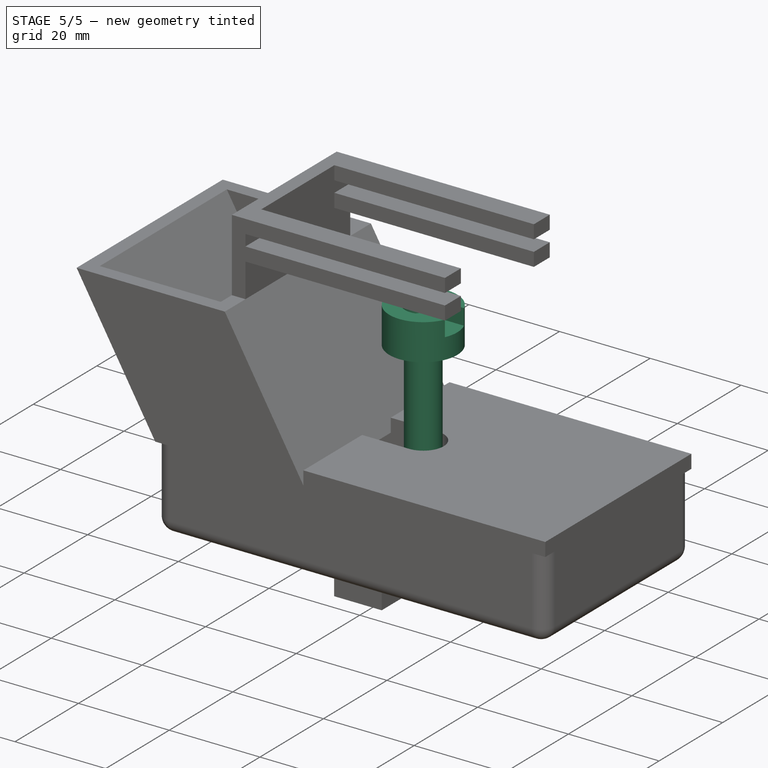
[diagram: stage 5 of 5 — iso view after this stage's code; geometry added in this stage tinted green]
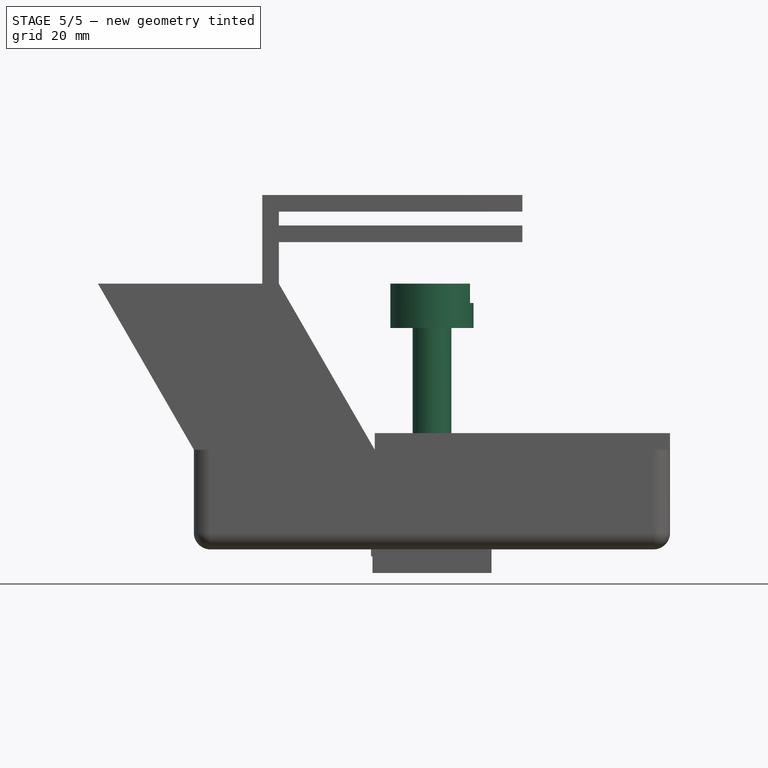
[diagram: stage 5 of 5 — front view after this stage's code; geometry added in this stage tinted green]
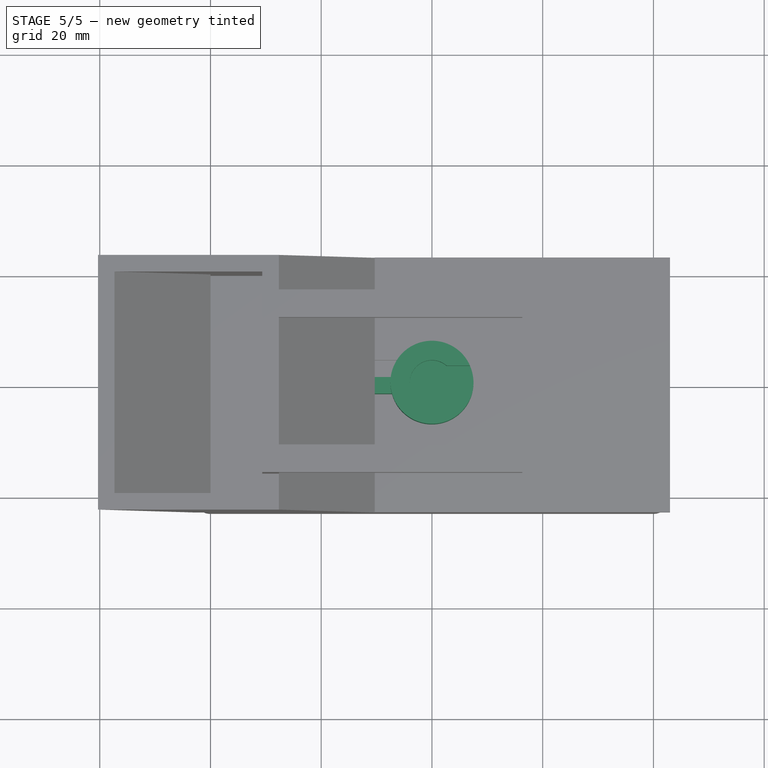
[diagram: stage 5 of 5 — top view after this stage's code; geometry added in this stage tinted green]
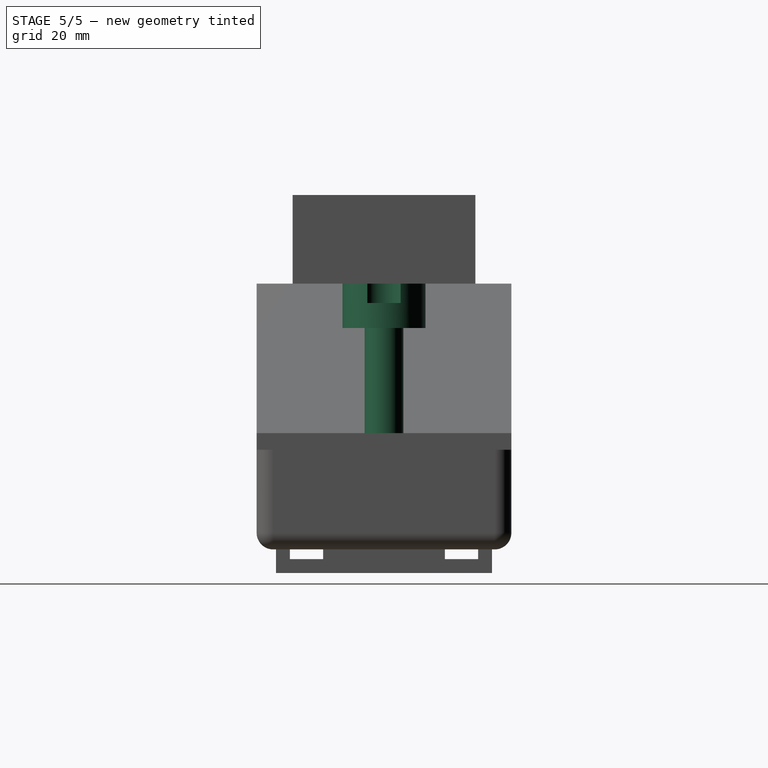
[diagram: stage 5 of 5 — right view after this stage's code; geometry added in this stage tinted green]
FEATURE [PartDesign::PolarPattern] PolarPattern
  Angle = 360
  Axis = -> Z_Axis001
  Mode = 0
  Occurrences = 4
  Offset = 120
  Refine = true
  SpacingPattern = [0]
  Spacings = [-1,-1,-1]
  Suppressed = false
  TransformMode = 0
FEATURE [PartDesign::MultiTransform] MultiTransform
  BaseFeature = -> Pad001
  Originals = -> [Pad001]
  Refine = true
  Suppressed = false
  TransformMode = 0
  Transformations = -> [PolarPattern]
FEATURE [Sketcher::SketchObject] Sketch004
  ArcFitTolerance = 1e-06
  AttachmentSupport = -> [MultiTransform]
  ExternalTypes = [0]
  FullyConstrained = true
  MakeInternals = false
  MapMode = 5
  Placement = pos=(0,0,0) rot=(1,0,0;3.14159rad)
  expr: Constraints[1] = <<VarSet>>.RotorMountD - <<VarSet>>.Tolerance
  sketch-geometry (1):
    g0: Circle CenterX=0 CenterY=0 CenterZ=0 NormalX=0 NormalY=0 NormalZ=1 AngleXU=0 Radius=3.5
  constraints (2):
    c: Coincident(g0,g-1)
    c: Diameter(g0) = 7
FEATURE [PartDesign::Pad] Pad002
  BaseFeature = -> MultiTransform
  Direction = (0,0,-1)
  Length = 1.5
  Length2 = 10
  Profile = -> Sketch004
  ReferenceAxis = -> Sketch004 [N_Axis]
  Refine = true
  SideType = 0
  Suppressed = false
  Type = 0
  Type2 = 0
  expr: Length = <<VarSet>>.WallT / 2
FEATURE [Sketcher::SketchObject] Sketch005
  ArcFitTolerance = 1e-06
  AttachmentSupport = -> [Pad002]
  ExternalTypes = [0]
  FullyConstrained = true
  MakeInternals = false
  MapMode = 5
  Placement = pos=(0,0,14) rot=(0,0,1;0rad)
  expr: Constraints[1] = <<VarSet>>.RotorMountD - <<VarSet>>.Tolerance
  sketch-geometry (1):
    g0: Circle CenterX=0 CenterY=0 CenterZ=0 NormalX=0 NormalY=0 NormalZ=1 AngleXU=0 Radius=3.5
  constraints (2):
    c: Coincident(g0,g-1)
    c: Diameter(g0) = 7
FEATURE [PartDesign::Pad] Pad003
  BaseFeature = -> Pad002
  Direction = (0,0,1)
  Length = 23
  Length2 = 10
  Profile = -> Sketch005
  ReferenceAxis = -> Sketch005 [N_Axis]
  Refine = true
  SideType = 0
  Suppressed = false
  Type = 0
  Type2 = 0
  expr: Length = <<VarSet>>.RotorH + <<VarSet>>.Tolerance
FEATURE [Sketcher::SketchObject] Sketch011
  ArcFitTolerance = 1e-06
  AttachmentSupport = -> [Pad003]
  ExternalGeometry = -> [Pad003]
  ExternalTypes = [0]
  FullyConstrained = true
  MakeInternals = false
  MapMode = 5
  Placement = pos=(0,0,37) rot=(0,0,1;0rad)
  expr: Constraints[1] = VarSet.EngineJunctionBaseD
  sketch-geometry (1):
    g0: Circle CenterX=0 CenterY=0 CenterZ=0 NormalX=0 NormalY=0 NormalZ=1 AngleXU=0 Radius=7.5
  constraints (2):
    c: Coincident(g0,g-1)
    c: Diameter(g0) = 15
FEATURE [PartDesign::Pad] Pad007
  BaseFeature = -> Pad003
  Direction = (0,0,1)
  Length = 8
  Length2 = 10
  Profile = -> Sketch011
  ReferenceAxis = -> Sketch011 [N_Axis]
  Refine = true
  SideType = 0
  Suppressed = false
  Type = 0
  Type2 = 0
  expr: Length = VarSet.EngineJunctionBaseH
FEATURE [Sketcher::SketchObject] Sketch012
  ArcFitTolerance = 1e-06
  AttachmentSupport = -> [Pad007]
  ExternalTypes = [0]
  FullyConstrained = true
  MakeInternals = false
  MapMode = 5
  Placement = pos=(0,0,45) rot=(0,0,1;0rad)
  expr: Constraints[10] = <<VarSet>>.EngineJunctionBaseD / 2
  expr: Constraints[5] = VarSet.EngineJunctionWingD
  expr: Constraints[6] = VarSet.EngineMountCircD
  sketch-geometry (4):
    g0: ArcOfCircle CenterX=0 CenterY=0 CenterZ=0 NormalX=0 NormalY=0 NormalZ=1 AngleXU=0 Radius=4 StartAngle=0.848062 EndAngle=5.43512
    g1: LineSegment StartX=2.64575 StartY=-3 StartZ=0 EndX=10.1458 EndY=-3 EndZ=0
    g2: LineSegment StartX=10.1458 StartY=-3 StartZ=0 EndX=10.1458 EndY=3 EndZ=0
    g3: LineSegment StartX=10.1458 StartY=3 StartZ=0 EndX=2.64575 EndY=3 EndZ=0
  constraints (11):
    c: Coincident(g0,g-1)
    c: Coincident(g1,g2)
    c: Coincident(g2,g3)
    c: Horizontal(g1)
    c: Horizontal(g3)
    c: DistanceY(g2,g2) = 6
    c: Diameter(g0) = 8
    c: Coincident(g3,g0)
    c: Coincident(g1,g0)
    c: Symmetric(g1,g2,g-1)
    c: DistanceX(g1,g1) = 7.5
FEATURE [PartDesign::Pocket] Pocket004
  BaseFeature = -> Pad007
  Direction = (0,0,-1)
  Length = 3.5
  Length2 = 5
  Profile = -> Sketch012
  ReferenceAxis = -> Sketch012 [N_Axis]
  Refine = true
  SideType = 0
  Suppressed = false
  Type = 0
  Type2 = 0
  expr: Length = <<VarSet>>.EngineJnuctionEngr
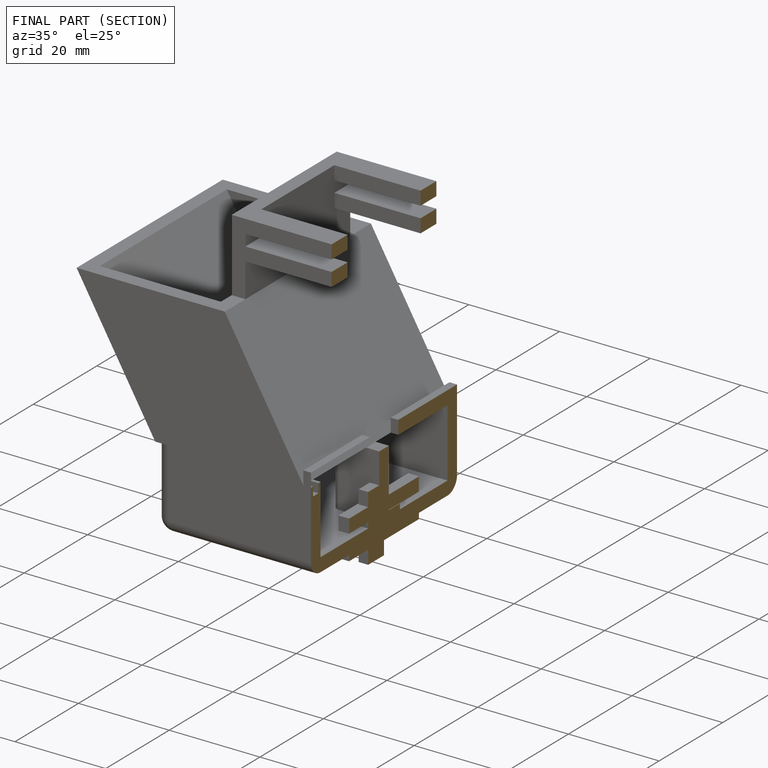
[diagram: finished part — half-section view (interior)]
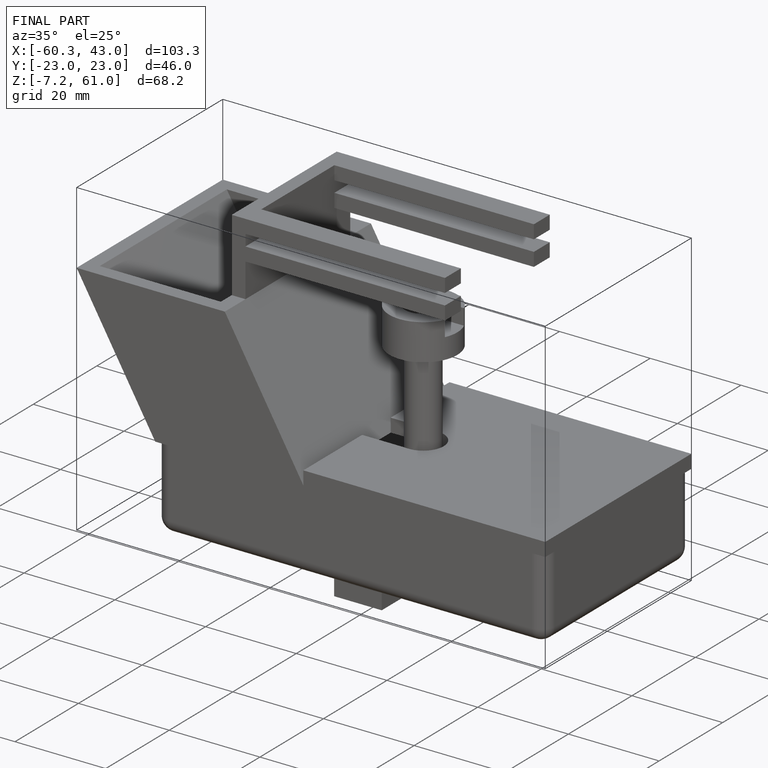
[diagram: finished part — iso view with bounding-box wireframe]
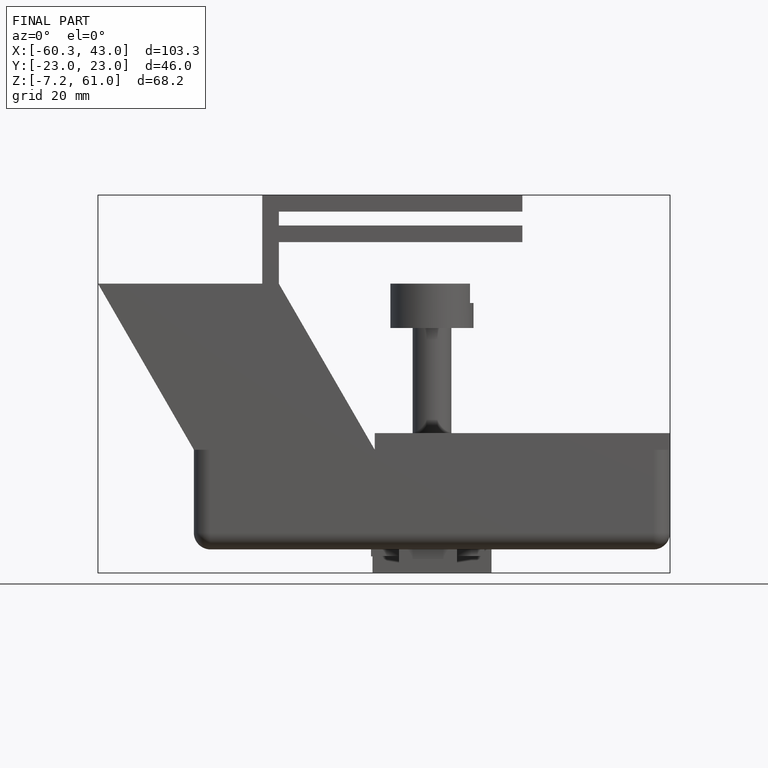
[diagram: finished part — front view with bounding-box wireframe]
